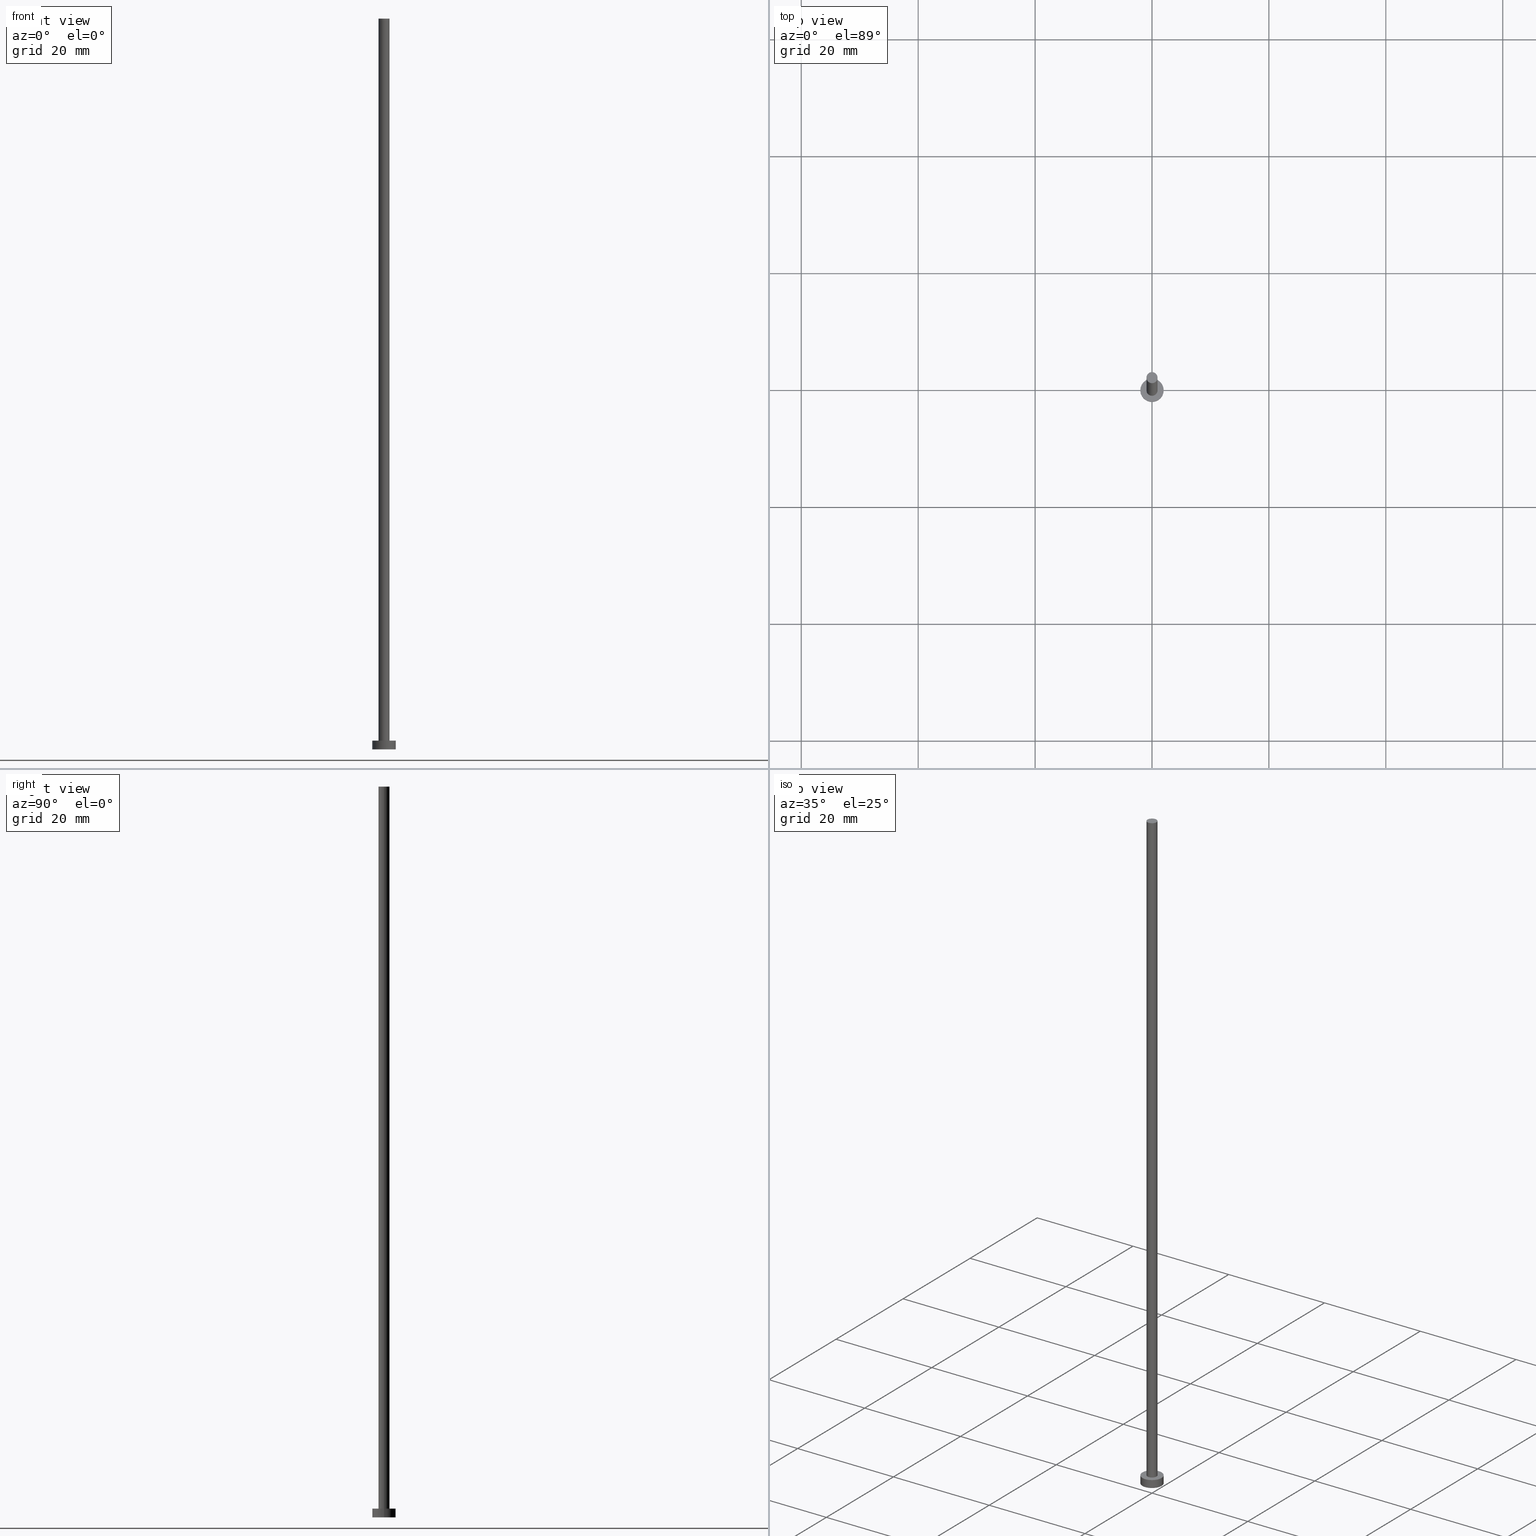
[diagram: canonical four-view strip — front | top / right | iso, engineering-drawing reading convention]
A machine part, canonical four-view strip (front | top / right | iso — engineering-drawing reading convention). The complete STEP part file that produces these views, byte-faithful:
ISO-10303-21;
HEADER;
FILE_DESCRIPTION (( 'STEP AP203' ),
    '1' );
FILE_NAME ('0857.STEP',
    '2023-02-12T12:54:01',
    ( '' ),
    ( '' ),
    'SwSTEP 2.0',
    'SolidWorks 2019',
    '' );
FILE_SCHEMA (( 'CONFIG_CONTROL_DESIGN' ));
ENDSEC;

DATA;
#1 = CYLINDRICAL_SURFACE ( 'NONE', #80, 0.9499999999999999556 ) ;
#2 = CALENDAR_DATE ( 2023, 12, 2 ) ;
#3 = CARTESIAN_POINT ( 'NONE',  ( 0.9499999999999999556, 1.163414459189985682E-16, 125.0000000000000000 ) ) ;
#4 = ORIENTED_EDGE ( 'NONE', *, *, #119, .T. ) ;
#5 = PRODUCT_DEFINITION ( 'NEZN�M�', '', #206, #93 ) ;
#6 = FACE_OUTER_BOUND ( 'NONE', #207, .T. ) ;
#7 = ORIENTED_EDGE ( 'NONE', *, *, #36, .F. ) ;
#8 = LOCAL_TIME ( 13, 54, 1.000000000000000000, #102 ) ;
#9 = DIRECTION ( 'NONE',  ( 0.000000000000000000, 0.000000000000000000, 1.000000000000000000 ) ) ;
#10 = EDGE_CURVE ( 'NONE', #88, #90, #31, .T. ) ;
#11 = CALENDAR_DATE ( 2023, 12, 2 ) ;
#12 = ORIENTED_EDGE ( 'NONE', *, *, #115, .F. ) ;
#13 = LINE ( 'NONE', #29, #208 ) ;
#14 = LINE ( 'NONE', #203, #74 ) ;
#15 = ORIENTED_EDGE ( 'NONE', *, *, #115, .T. ) ;
#16 = APPROVAL_DATE_TIME ( #182, #59 ) ;
#17 = AXIS2_PLACEMENT_3D ( 'NONE', #99, #170, #191 ) ;
#18 = CYLINDRICAL_SURFACE ( 'NONE', #243, 0.9499999999999999556 ) ;
#19 = APPROVAL_ROLE ( '' ) ;
#20 = DIRECTION ( 'NONE',  ( 1.000000000000000000, 0.000000000000000000, 0.000000000000000000 ) ) ;
#21 = CC_DESIGN_PERSON_AND_ORGANIZATION_ASSIGNMENT ( #255, #124, ( #252 ) ) ;
#22 = LINE ( 'NONE', #3, #162 ) ;
#23 = ORIENTED_EDGE ( 'NONE', *, *, #75, .T. ) ;
#24 = AXIS2_PLACEMENT_3D ( 'NONE', #240, #197, #53 ) ;
#25 = DIRECTION ( 'NONE',  ( -0.000000000000000000, -0.000000000000000000, -1.000000000000000000 ) ) ;
#26 = CIRCLE ( 'NONE', #50, 0.9499999999999999556 ) ;
#27 = FACE_OUTER_BOUND ( 'NONE', #72, .T. ) ;
#28 = EDGE_CURVE ( 'NONE', #138, #245, #107, .T. ) ;
#29 = CARTESIAN_POINT ( 'NONE',  ( -0.9499999999999999556, 0.000000000000000000, 125.0000000000000000 ) ) ;
#30 = CARTESIAN_POINT ( 'NONE',  ( 0.9499999999999999556, 1.163414459189985682E-16, 1.500000000000000000 ) ) ;
#31 = CIRCLE ( 'NONE', #45, 2.000000000000000000 ) ;
#32 = LOCAL_TIME ( 13, 54, 1.000000000000000000, #127 ) ;
#33 = CALENDAR_DATE ( 2023, 12, 2 ) ;
#34 = PERSON_AND_ORGANIZATION ( #47, #137 ) ;
#35 = ORIENTED_EDGE ( 'NONE', *, *, #246, .F. ) ;
#36 = EDGE_CURVE ( 'NONE', #189, #231, #55, .T. ) ;
#37 = EDGE_LOOP ( 'NONE', ( #73, #82, #151, #35 ) ) ;
#38 = APPROVAL_ROLE ( '' ) ;
#39 = CARTESIAN_POINT ( 'NONE',  ( -2.000000000000000000, 0.000000000000000000, 0.000000000000000000 ) ) ;
#40 = CC_DESIGN_DATE_AND_TIME_ASSIGNMENT ( #104, #177, ( #252 ) ) ;
#41 = LINE ( 'NONE', #42, #164 ) ;
#42 = CARTESIAN_POINT ( 'NONE',  ( -2.000000000000000000, 0.000000000000000000, 1.500000000000000000 ) ) ;
#43 = FACE_OUTER_BOUND ( 'NONE', #37, .T. ) ;
#44 = CARTESIAN_POINT ( 'NONE',  ( -2.000000000000000000, 0.000000000000000000, 1.500000000000000000 ) ) ;
#45 = AXIS2_PLACEMENT_3D ( 'NONE', #92, #114, #96 ) ;
#46 = PERSON_AND_ORGANIZATION ( #47, #137 ) ;
#47 = PERSON ( 'NEUR�EN�', 'NEUR�EN�', 'NEUR�EN�', ('NEUR�EN�'), ('NEUR�EN�'), ('NEUR�EN�') ) ;
#48 = ADVANCED_FACE ( 'NONE', ( #60 ), #161, .F. ) ;
#49 = CALENDAR_DATE ( 2023, 12, 2 ) ;
#50 = AXIS2_PLACEMENT_3D ( 'NONE', #61, #68, #183 ) ;
#51 =( NAMED_UNIT ( * ) SI_UNIT ( $, .STERADIAN. ) SOLID_ANGLE_UNIT ( ) );
#52 = CARTESIAN_POINT ( 'NONE',  ( 0.000000000000000000, 0.000000000000000000, 1.500000000000000000 ) ) ;
#53 = DIRECTION ( 'NONE',  ( -1.000000000000000000, 0.000000000000000000, 0.000000000000000000 ) ) ;
#54 = ORIENTED_EDGE ( 'NONE', *, *, #134, .T. ) ;
#55 = CIRCLE ( 'NONE', #212, 0.9499999999999999556 ) ;
#56 = PERSON_AND_ORGANIZATION ( #47, #137 ) ;
#57 = DIRECTION ( 'NONE',  ( -1.000000000000000000, 0.000000000000000000, 0.000000000000000000 ) ) ;
#58 = MECHANICAL_CONTEXT ( 'NONE', #120, 'mechanical' ) ;
#59 = APPROVAL ( #205, 'NEUR�EN�' ) ;
#60 = FACE_OUTER_BOUND ( 'NONE', #78, .T. ) ;
#61 = CARTESIAN_POINT ( 'NONE',  ( 0.000000000000000000, 0.000000000000000000, 125.0000000000000000 ) ) ;
#62 = DIRECTION ( 'NONE',  ( -0.000000000000000000, -0.000000000000000000, -1.000000000000000000 ) ) ;
#63 = APPROVAL_PERSON_ORGANIZATION ( #46, #94, #98 ) ;
#64 = DIRECTION ( 'NONE',  ( 1.000000000000000000, 0.000000000000000000, 0.000000000000000000 ) ) ;
#65 = CC_DESIGN_DATE_AND_TIME_ASSIGNMENT ( #142, #116, ( #5 ) ) ;
#66 = DIRECTION ( 'NONE',  ( 0.000000000000000000, 0.000000000000000000, 1.000000000000000000 ) ) ;
#67 = COORDINATED_UNIVERSAL_TIME_OFFSET ( 1, 0, .AHEAD. ) ;
#68 = DIRECTION ( 'NONE',  ( 0.000000000000000000, 0.000000000000000000, 1.000000000000000000 ) ) ;
#69 = EDGE_CURVE ( 'NONE', #245, #231, #13, .T. ) ;
#70 = CC_DESIGN_PERSON_AND_ORGANIZATION_ASSIGNMENT ( #165, #184, ( #202 ) ) ;
#71 = FACE_BOUND ( 'NONE', #147, .T. ) ;
#72 = EDGE_LOOP ( 'NONE', ( #89, #15, #106, #204 ) ) ;
#73 = ORIENTED_EDGE ( 'NONE', *, *, #75, .F. ) ;
#74 = VECTOR ( 'NONE', #111, 1000.000000000000000 ) ;
#75 = EDGE_CURVE ( 'NONE', #90, #88, #238, .T. ) ;
#76 = PLANE ( 'NONE',  #232 ) ;
#77 = CARTESIAN_POINT ( 'NONE',  ( 0.000000000000000000, 0.000000000000000000, 1.500000000000000000 ) ) ;
#78 = EDGE_LOOP ( 'NONE', ( #86, #195 ) ) ;
#79 = CARTESIAN_POINT ( 'NONE',  ( 0.000000000000000000, 0.000000000000000000, 125.0000000000000000 ) ) ;
#80 = AXIS2_PLACEMENT_3D ( 'NONE', #105, #25, #57 ) ;
#81 = CARTESIAN_POINT ( 'NONE',  ( 2.000000000000000000, 2.449293598294706414E-16, 0.000000000000000000 ) ) ;
#82 = ORIENTED_EDGE ( 'NONE', *, *, #196, .T. ) ;
#83 = PERSON_AND_ORGANIZATION_ROLE ( 'creator' ) ;
#84 = AXIS2_PLACEMENT_3D ( 'NONE', #222, #254, #167 ) ;
#85 = DIRECTION ( 'NONE',  ( -0.000000000000000000, -0.000000000000000000, -1.000000000000000000 ) ) ;
#86 = ORIENTED_EDGE ( 'NONE', *, *, #119, .F. ) ;
#87 = DIRECTION ( 'NONE',  ( 0.000000000000000000, 0.000000000000000000, 1.000000000000000000 ) ) ;
#88 = VERTEX_POINT ( 'NONE', #44 ) ;
#89 = ORIENTED_EDGE ( 'NONE', *, *, #28, .F. ) ;
#90 = VERTEX_POINT ( 'NONE', #144 ) ;
#91 = CIRCLE ( 'NONE', #109, 2.000000000000000000 ) ;
#92 = CARTESIAN_POINT ( 'NONE',  ( 0.000000000000000000, 0.000000000000000000, 1.500000000000000000 ) ) ;
#93 = DESIGN_CONTEXT ( 'detailed design', #253, 'design' ) ;
#94 = APPROVAL ( #146, 'NEUR�EN�' ) ;
#95 = LOCAL_TIME ( 13, 54, 1.000000000000000000, #67 ) ;
#96 = DIRECTION ( 'NONE',  ( 1.000000000000000000, 0.000000000000000000, 0.000000000000000000 ) ) ;
#97 = ADVANCED_FACE ( 'NONE', ( #235 ), #18, .T. ) ;
#98 = APPROVAL_ROLE ( '' ) ;
#99 = CARTESIAN_POINT ( 'NONE',  ( 0.000000000000000000, 0.000000000000000000, 1.500000000000000000 ) ) ;
#100 = ADVANCED_FACE ( 'NONE', ( #43 ), #117, .T. ) ;
#101 = VERTEX_POINT ( 'NONE', #81 ) ;
#102 = COORDINATED_UNIVERSAL_TIME_OFFSET ( 1, 0, .AHEAD. ) ;
#103 = LOCAL_TIME ( 13, 54, 1.000000000000000000, #209 ) ;
#104 = DATE_AND_TIME ( #49, #8 ) ;
#105 = CARTESIAN_POINT ( 'NONE',  ( 0.000000000000000000, 0.000000000000000000, 125.0000000000000000 ) ) ;
#106 = ORIENTED_EDGE ( 'NONE', *, *, #36, .T. ) ;
#107 = CIRCLE ( 'NONE', #169, 0.9499999999999999556 ) ;
#108 = DIRECTION ( 'NONE',  ( 1.000000000000000000, 0.000000000000000000, -0.000000000000000000 ) ) ;
#109 = AXIS2_PLACEMENT_3D ( 'NONE', #174, #218, #64 ) ;
#110 = ADVANCED_FACE ( 'NONE', ( #228 ), #155, .T. ) ;
#111 = DIRECTION ( 'NONE',  ( -0.000000000000000000, -0.000000000000000000, -1.000000000000000000 ) ) ;
#112 = ORIENTED_EDGE ( 'NONE', *, *, #10, .F. ) ;
#113 = AXIS2_PLACEMENT_3D ( 'NONE', #150, #239, #215 ) ;
#114 = DIRECTION ( 'NONE',  ( 0.000000000000000000, 0.000000000000000000, 1.000000000000000000 ) ) ;
#115 = EDGE_CURVE ( 'NONE', #138, #189, #22, .T. ) ;
#116 = DATE_TIME_ROLE ( 'creation_date' ) ;
#117 = CYLINDRICAL_SURFACE ( 'NONE', #17, 2.000000000000000000 ) ;
#118 = CIRCLE ( 'NONE', #122, 2.000000000000000000 ) ;
#119 = EDGE_CURVE ( 'NONE', #236, #101, #118, .T. ) ;
#120 = APPLICATION_CONTEXT ( 'configuration controlled 3d designs of mechanical parts and assemblies' ) ;
#121 = AXIS2_PLACEMENT_3D ( 'NONE', #52, #180, #199 ) ;
#122 = AXIS2_PLACEMENT_3D ( 'NONE', #157, #87, #20 ) ;
#123 = CC_DESIGN_APPROVAL ( #94, ( #206 ) ) ;
#124 = PERSON_AND_ORGANIZATION_ROLE ( 'classification_officer' ) ;
#125 = PLANE ( 'NONE',  #113 ) ;
#126 = ORIENTED_EDGE ( 'NONE', *, *, #28, .T. ) ;
#127 = COORDINATED_UNIVERSAL_TIME_OFFSET ( 1, 0, .AHEAD. ) ;
#128 = CLOSED_SHELL ( 'NONE', ( #145, #100, #110, #149, #48, #97, #219 ) ) ;
#129 = CC_DESIGN_PERSON_AND_ORGANIZATION_ASSIGNMENT ( #56, #171, ( #206 ) ) ;
#130 = CC_DESIGN_SECURITY_CLASSIFICATION ( #252, ( #206 ) ) ;
#131 = PERSON_AND_ORGANIZATION ( #47, #137 ) ;
#132 = CARTESIAN_POINT ( 'NONE',  ( 0.9499999999999999556, 1.163414459189985682E-16, 125.0000000000000000 ) ) ;
#133 = DIRECTION ( 'NONE',  ( 0.000000000000000000, 0.000000000000000000, 1.000000000000000000 ) ) ;
#134 = EDGE_CURVE ( 'NONE', #231, #189, #188, .T. ) ;
#135 = UNCERTAINTY_MEASURE_WITH_UNIT (LENGTH_MEASURE( 1.000000000000000082E-05 ), #152, 'distance_accuracy_value', 'NONE');
#136 = DIRECTION ( 'NONE',  ( 1.000000000000000000, 0.000000000000000000, 0.000000000000000000 ) ) ;
#137 = ORGANIZATION ( 'NEUR�EN�', 'NEUR�EN�', '' ) ;
#138 = VERTEX_POINT ( 'NONE', #132 ) ;
#139 = CARTESIAN_POINT ( 'NONE',  ( 0.000000000000000000, 0.000000000000000000, 0.000000000000000000 ) ) ;
#140 = CARTESIAN_POINT ( 'NONE',  ( 0.000000000000000000, 0.000000000000000000, 125.0000000000000000 ) ) ;
#141 = APPROVAL_PERSON_ORGANIZATION ( #34, #211, #19 ) ;
#142 = DATE_AND_TIME ( #190, #95 ) ;
#143 = ORIENTED_EDGE ( 'NONE', *, *, #196, .F. ) ;
#144 = CARTESIAN_POINT ( 'NONE',  ( 2.000000000000000000, 2.449293598294706414E-16, 1.500000000000000000 ) ) ;
#145 = ADVANCED_FACE ( 'NONE', ( #27 ), #1, .T. ) ;
#146 = APPROVAL_STATUS ( 'not_yet_approved' ) ;
#147 = EDGE_LOOP ( 'NONE', ( #178, #7 ) ) ;
#148 = LOCAL_TIME ( 13, 54, 1.000000000000000000, #200 ) ;
#149 = ADVANCED_FACE ( 'NONE', ( #71, #6 ), #125, .T. ) ;
#150 = CARTESIAN_POINT ( 'NONE',  ( 0.000000000000000000, 0.000000000000000000, 1.500000000000000000 ) ) ;
#151 = ORIENTED_EDGE ( 'NONE', *, *, #175, .T. ) ;
#152 =( LENGTH_UNIT ( ) NAMED_UNIT ( * ) SI_UNIT ( .MILLI., .METRE. ) );
#153 = DIRECTION ( 'NONE',  ( -0.000000000000000000, -0.000000000000000000, -1.000000000000000000 ) ) ;
#154 = APPROVAL_STATUS ( 'not_yet_approved' ) ;
#155 = CYLINDRICAL_SURFACE ( 'NONE', #24, 2.000000000000000000 ) ;
#156 = DATE_AND_TIME ( #2, #32 ) ;
#157 = CARTESIAN_POINT ( 'NONE',  ( 0.000000000000000000, 0.000000000000000000, 0.000000000000000000 ) ) ;
#158 = CC_DESIGN_APPROVAL ( #211, ( #252 ) ) ;
#159 = DIRECTION ( 'NONE',  ( 0.000000000000000000, 0.000000000000000000, 1.000000000000000000 ) ) ;
#160 = APPLICATION_PROTOCOL_DEFINITION ( 'international standard', 'config_control_design', 1994, #253 ) ;
#161 = PLANE ( 'NONE',  #172 ) ;
#162 = VECTOR ( 'NONE', #153, 1000.000000000000000 ) ;
#163 = DIRECTION ( 'NONE',  ( 0.000000000000000000, 0.000000000000000000, 1.000000000000000000 ) ) ;
#164 = VECTOR ( 'NONE', #173, 1000.000000000000000 ) ;
#165 = PERSON_AND_ORGANIZATION ( #47, #137 ) ;
#166 = PRODUCT_RELATED_PRODUCT_CATEGORY ( 'detail', '', ( #202 ) ) ;
#167 = DIRECTION ( 'NONE',  ( 1.000000000000000000, 0.000000000000000000, 0.000000000000000000 ) ) ;
#168 = APPROVAL_DATE_TIME ( #233, #94 ) ;
#169 = AXIS2_PLACEMENT_3D ( 'NONE', #79, #9, #223 ) ;
#170 = DIRECTION ( 'NONE',  ( -0.000000000000000000, -0.000000000000000000, -1.000000000000000000 ) ) ;
#171 = PERSON_AND_ORGANIZATION_ROLE ( 'design_supplier' ) ;
#172 = AXIS2_PLACEMENT_3D ( 'NONE', #187, #133, #220 ) ;
#173 = DIRECTION ( 'NONE',  ( -0.000000000000000000, -0.000000000000000000, -1.000000000000000000 ) ) ;
#174 = CARTESIAN_POINT ( 'NONE',  ( 0.000000000000000000, 0.000000000000000000, 0.000000000000000000 ) ) ;
#175 = EDGE_CURVE ( 'NONE', #101, #236, #91, .T. ) ;
#176 = ORIENTED_EDGE ( 'NONE', *, *, #69, .T. ) ;
#177 = DATE_TIME_ROLE ( 'classification_date' ) ;
#178 = ORIENTED_EDGE ( 'NONE', *, *, #134, .F. ) ;
#179 =( NAMED_UNIT ( * ) PLANE_ANGLE_UNIT ( ) SI_UNIT ( $, .RADIAN. ) );
#180 = DIRECTION ( 'NONE',  ( 0.000000000000000000, 0.000000000000000000, 1.000000000000000000 ) ) ;
#181 = EDGE_LOOP ( 'NONE', ( #12, #226, #176, #54 ) ) ;
#182 = DATE_AND_TIME ( #11, #148 ) ;
#183 = DIRECTION ( 'NONE',  ( 1.000000000000000000, 0.000000000000000000, 0.000000000000000000 ) ) ;
#184 = PERSON_AND_ORGANIZATION_ROLE ( 'design_owner' ) ;
#185 = FACE_OUTER_BOUND ( 'NONE', #216, .T. ) ;
#186 = ORIENTED_EDGE ( 'NONE', *, *, #213, .T. ) ;
#187 = CARTESIAN_POINT ( 'NONE',  ( 0.000000000000000000, 0.000000000000000000, 0.000000000000000000 ) ) ;
#188 = CIRCLE ( 'NONE', #121, 0.9499999999999999556 ) ;
#189 = VERTEX_POINT ( 'NONE', #30 ) ;
#190 = CALENDAR_DATE ( 2023, 12, 2 ) ;
#191 = DIRECTION ( 'NONE',  ( -1.000000000000000000, 0.000000000000000000, 0.000000000000000000 ) ) ;
#192 = ORIENTED_EDGE ( 'NONE', *, *, #10, .T. ) ;
#193 = CARTESIAN_POINT ( 'NONE',  ( 0.000000000000000000, 0.000000000000000000, 125.0000000000000000 ) ) ;
#194 = SHAPE_DEFINITION_REPRESENTATION ( #224, #248 ) ;
#195 = ORIENTED_EDGE ( 'NONE', *, *, #175, .F. ) ;
#196 = EDGE_CURVE ( 'NONE', #90, #101, #14, .T. ) ;
#197 = DIRECTION ( 'NONE',  ( -0.000000000000000000, -0.000000000000000000, -1.000000000000000000 ) ) ;
#198 =( GEOMETRIC_REPRESENTATION_CONTEXT ( 3 ) GLOBAL_UNCERTAINTY_ASSIGNED_CONTEXT ( ( #135 ) ) GLOBAL_UNIT_ASSIGNED_CONTEXT ( ( #152, #179, #51 ) ) REPRESENTATION_CONTEXT ( 'NONE', 'WORKASPACE' ) );
#199 = DIRECTION ( 'NONE',  ( 1.000000000000000000, 0.000000000000000000, 0.000000000000000000 ) ) ;
#200 = COORDINATED_UNIVERSAL_TIME_OFFSET ( 1, 0, .AHEAD. ) ;
#201 = DIRECTION ( 'NONE',  ( 1.000000000000000000, 0.000000000000000000, 0.000000000000000000 ) ) ;
#202 = PRODUCT ( '0857', '0857', '', ( #58 ) ) ;
#203 = CARTESIAN_POINT ( 'NONE',  ( 2.000000000000000000, 2.449293598294706414E-16, 1.500000000000000000 ) ) ;
#204 = ORIENTED_EDGE ( 'NONE', *, *, #69, .F. ) ;
#205 = APPROVAL_STATUS ( 'not_yet_approved' ) ;
#206 = PRODUCT_DEFINITION_FORMATION_WITH_SPECIFIED_SOURCE ( 'LIBOVOLN�', '', #202, .NOT_KNOWN. ) ;
#207 = EDGE_LOOP ( 'NONE', ( #192, #23 ) ) ;
#208 = VECTOR ( 'NONE', #62, 1000.000000000000000 ) ;
#209 = COORDINATED_UNIVERSAL_TIME_OFFSET ( 1, 0, .AHEAD. ) ;
#210 = PERSON_AND_ORGANIZATION_ROLE ( 'creator' ) ;
#211 = APPROVAL ( #154, 'NEUR�EN�' ) ;
#212 = AXIS2_PLACEMENT_3D ( 'NONE', #77, #159, #136 ) ;
#213 = EDGE_CURVE ( 'NONE', #245, #138, #26, .T. ) ;
#214 = APPROVAL_DATE_TIME ( #156, #211 ) ;
#215 = DIRECTION ( 'NONE',  ( 1.000000000000000000, 0.000000000000000000, -0.000000000000000000 ) ) ;
#216 = EDGE_LOOP ( 'NONE', ( #186, #126 ) ) ;
#217 = AXIS2_PLACEMENT_3D ( 'NONE', #139, #66, #201 ) ;
#218 = DIRECTION ( 'NONE',  ( 0.000000000000000000, 0.000000000000000000, 1.000000000000000000 ) ) ;
#219 = ADVANCED_FACE ( 'NONE', ( #185 ), #76, .T. ) ;
#220 = DIRECTION ( 'NONE',  ( 1.000000000000000000, 0.000000000000000000, -0.000000000000000000 ) ) ;
#221 = CC_DESIGN_APPROVAL ( #59, ( #5 ) ) ;
#222 = CARTESIAN_POINT ( 'NONE',  ( 0.000000000000000000, 0.000000000000000000, 1.500000000000000000 ) ) ;
#223 = DIRECTION ( 'NONE',  ( 1.000000000000000000, 0.000000000000000000, 0.000000000000000000 ) ) ;
#224 = PRODUCT_DEFINITION_SHAPE ( 'NONE', 'NONE',  #5 ) ;
#225 = APPROVAL_PERSON_ORGANIZATION ( #131, #59, #38 ) ;
#226 = ORIENTED_EDGE ( 'NONE', *, *, #213, .F. ) ;
#227 = PERSON_AND_ORGANIZATION ( #47, #137 ) ;
#228 = FACE_OUTER_BOUND ( 'NONE', #244, .T. ) ;
#229 = PERSON_AND_ORGANIZATION ( #47, #137 ) ;
#230 = CARTESIAN_POINT ( 'NONE',  ( -0.9499999999999999556, 0.000000000000000000, 125.0000000000000000 ) ) ;
#231 = VERTEX_POINT ( 'NONE', #247 ) ;
#232 = AXIS2_PLACEMENT_3D ( 'NONE', #140, #163, #108 ) ;
#233 = DATE_AND_TIME ( #33, #103 ) ;
#234 = CC_DESIGN_PERSON_AND_ORGANIZATION_ASSIGNMENT ( #229, #83, ( #206 ) ) ;
#235 = FACE_OUTER_BOUND ( 'NONE', #181, .T. ) ;
#236 = VERTEX_POINT ( 'NONE', #39 ) ;
#237 = SECURITY_CLASSIFICATION_LEVEL ( 'unclassified' ) ;
#238 = CIRCLE ( 'NONE', #84, 2.000000000000000000 ) ;
#239 = DIRECTION ( 'NONE',  ( 0.000000000000000000, 0.000000000000000000, 1.000000000000000000 ) ) ;
#240 = CARTESIAN_POINT ( 'NONE',  ( 0.000000000000000000, 0.000000000000000000, 1.500000000000000000 ) ) ;
#241 = APPLICATION_PROTOCOL_DEFINITION ( 'international standard', 'config_control_design', 1994, #120 ) ;
#242 = ORIENTED_EDGE ( 'NONE', *, *, #246, .T. ) ;
#243 = AXIS2_PLACEMENT_3D ( 'NONE', #193, #85, #251 ) ;
#244 = EDGE_LOOP ( 'NONE', ( #143, #112, #242, #4 ) ) ;
#245 = VERTEX_POINT ( 'NONE', #230 ) ;
#246 = EDGE_CURVE ( 'NONE', #88, #236, #41, .T. ) ;
#247 = CARTESIAN_POINT ( 'NONE',  ( -0.9499999999999999556, 0.000000000000000000, 1.500000000000000000 ) ) ;
#248 = ADVANCED_BREP_SHAPE_REPRESENTATION ( '0857', ( #249, #217 ), #198 ) ;
#249 = MANIFOLD_SOLID_BREP ( 'P�idat vysunut�m3', #128 ) ;
#250 = CC_DESIGN_PERSON_AND_ORGANIZATION_ASSIGNMENT ( #227, #210, ( #5 ) ) ;
#251 = DIRECTION ( 'NONE',  ( -1.000000000000000000, 0.000000000000000000, 0.000000000000000000 ) ) ;
#252 = SECURITY_CLASSIFICATION ( '', '', #237 ) ;
#253 = APPLICATION_CONTEXT ( 'configuration controlled 3d designs of mechanical parts and assemblies' ) ;
#254 = DIRECTION ( 'NONE',  ( 0.000000000000000000, 0.000000000000000000, 1.000000000000000000 ) ) ;
#255 = PERSON_AND_ORGANIZATION ( #47, #137 ) ;
ENDSEC;
END-ISO-10303-21;
